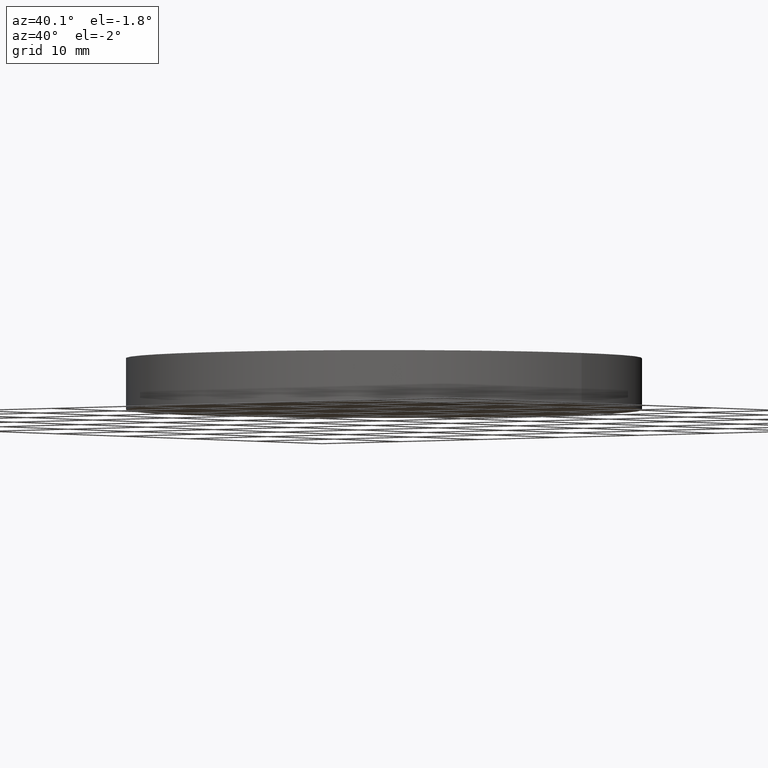
[diagram: clean part render]
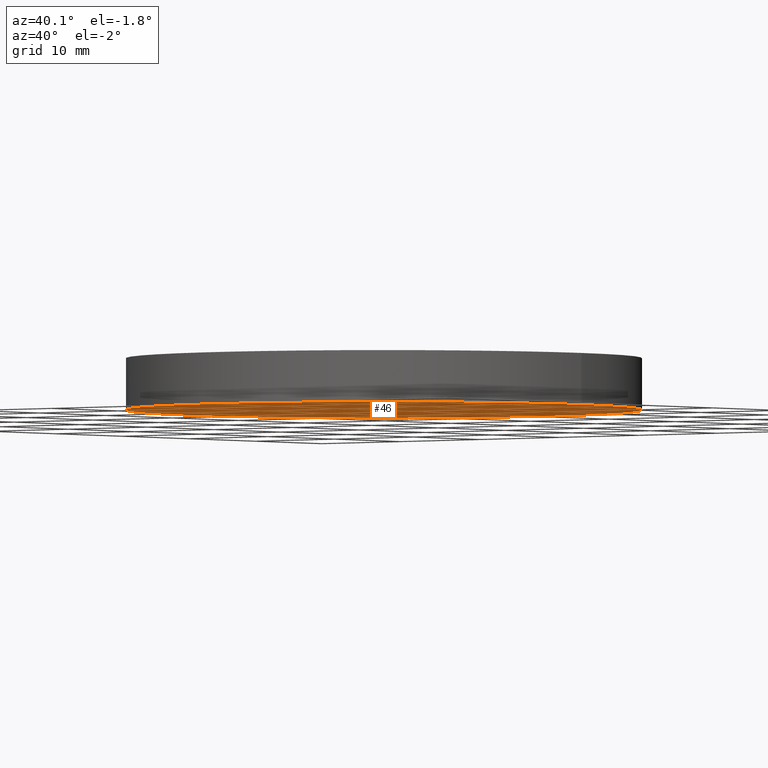
[diagram: same view with one face highlighted and labeled with its STEP entity id]
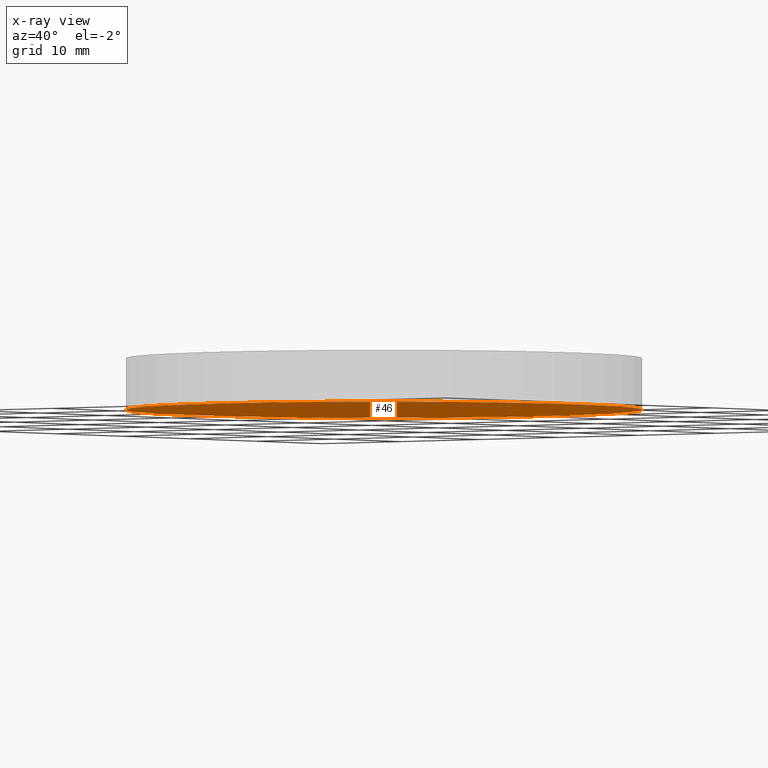
[diagram: x-ray of the same camera — body ghosted, the highlighted face saturated]
A machine part, auxiliary view. The second image highlights one B-rep face of the part: STEP entity #46.
The next image is the same camera in x-ray: the body ghosted, the highlighted face saturated — about 0% of this face is hidden behind the body in this view.
In plain terms, the highlighted planar face has unit normal (0, 0, 1).
Its self-contained STEP definition (entity closure, byte-faithful):
#8 = AXIS2_PLACEMENT_3D ( 'NONE', #74, #131, #59 ) ;
#10 = VERTEX_POINT ( 'NONE', #65 ) ;
#15 = ORIENTED_EDGE ( 'NONE', *, *, #92, .F. ) ;
#35 = DIRECTION ( 'NONE',  ( 0.0000000000000000000, 0.0000000000000000000, 1.000000000000000000 ) ) ;
#37 = CARTESIAN_POINT ( 'NONE',  ( -25.00000000000000000, 0.0000000000000000000, 0.0000000000000000000 ) ) ;
#38 = DIRECTION ( 'NONE',  ( 1.000000000000000000, 0.0000000000000000000, -0.0000000000000000000 ) ) ;
#42 = ORIENTED_EDGE ( 'NONE', *, *, #94, .F. ) ;
#46 = ADVANCED_FACE ( 'NONE', ( #68 ), #76, .F. ) ;
#49 = DIRECTION ( 'NONE',  ( 0.0000000000000000000, 0.0000000000000000000, 1.000000000000000000 ) ) ;
#50 = CARTESIAN_POINT ( 'NONE',  ( 0.0000000000000000000, 0.0000000000000000000, 0.0000000000000000000 ) ) ;
#55 = CIRCLE ( 'NONE', #67, 25.00000000000000000 ) ;
#59 = DIRECTION ( 'NONE',  ( 1.000000000000000000, 0.0000000000000000000, 0.0000000000000000000 ) ) ;
#61 = CIRCLE ( 'NONE', #8, 25.00000000000000000 ) ;
#65 = CARTESIAN_POINT ( 'NONE',  ( 25.00000000000000000, 3.061616997868383000E-015, 0.0000000000000000000 ) ) ;
#67 = AXIS2_PLACEMENT_3D ( 'NONE', #116, #35, #106 ) ;
#68 = FACE_OUTER_BOUND ( 'NONE', #81, .T. ) ;
#74 = CARTESIAN_POINT ( 'NONE',  ( 0.0000000000000000000, 0.0000000000000000000, 0.0000000000000000000 ) ) ;
#76 = PLANE ( 'NONE',  #126 ) ;
#78 = VERTEX_POINT ( 'NONE', #37 ) ;
#81 = EDGE_LOOP ( 'NONE', ( #42, #15 ) ) ;
#92 = EDGE_CURVE ( 'NONE', #10, #78, #61, .T. ) ;
#94 = EDGE_CURVE ( 'NONE', #78, #10, #55, .T. ) ;
#106 = DIRECTION ( 'NONE',  ( 1.000000000000000000, 0.0000000000000000000, 0.0000000000000000000 ) ) ;
#116 = CARTESIAN_POINT ( 'NONE',  ( 0.0000000000000000000, 0.0000000000000000000, 0.0000000000000000000 ) ) ;
#126 = AXIS2_PLACEMENT_3D ( 'NONE', #50, #49, #38 ) ;
#131 = DIRECTION ( 'NONE',  ( 0.0000000000000000000, 0.0000000000000000000, 1.000000000000000000 ) ) ;